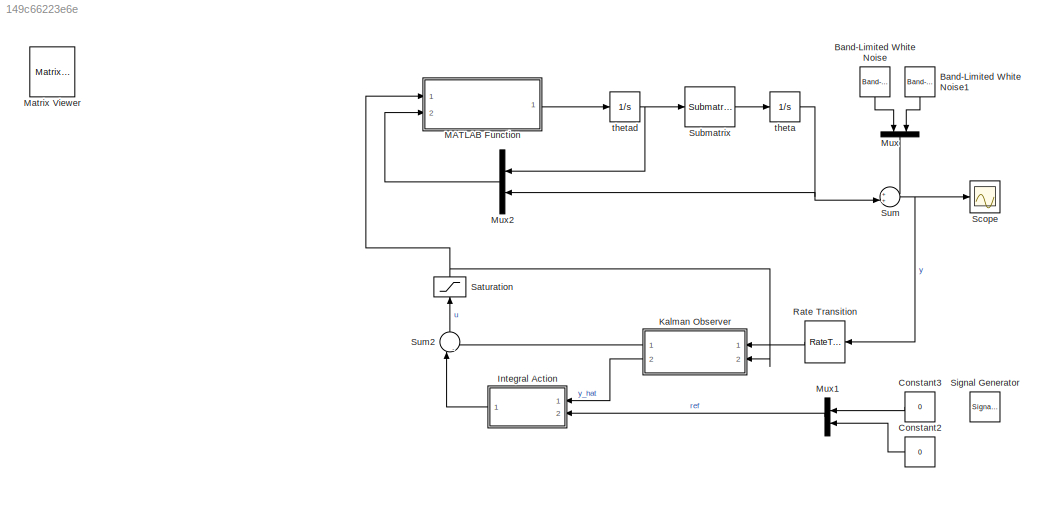
MODEL slx_149c66223e6e
KIND model
CONFIG AbsTol = auto
CONFIG EnableMultiTasking = on
CONFIG FixedStep = auto
CONFIG MaxStep = auto
CONFIG MinStep = auto
CONFIG RelTol = 1e-3
CONFIG SampleTimeConstraint = Unconstrained
CONFIG Solver = ode45
CONFIG SolverName = ode45
CONFIG StartTime = 0.0
CONFIG StopTime = 50
BLOCK [Reference] Band-Limited White Noise  REF=simulink/Sources/Band-Limited
White Noise
  Ports = [0, 1]
  SourceBlock = simulink/Sources/Band-Limited\nWhite Noise
  SourceProductBaseCode = SL
  SourceProductName = Simulink
  SourceType = Band-Limited White Noise.
BLOCK [Reference] Band-Limited White Noise1  REF=simulink/Sources/Band-Limited
White Noise
  Ports = [0, 1]
  SourceBlock = simulink/Sources/Band-Limited\nWhite Noise
  SourceProductBaseCode = SL
  SourceProductName = Simulink
  SourceType = Band-Limited White Noise.
BLOCK [Constant] Constant2
  Commented = on
  Value = 0
BLOCK [Constant] Constant3
  Commented = on
  Value = 0
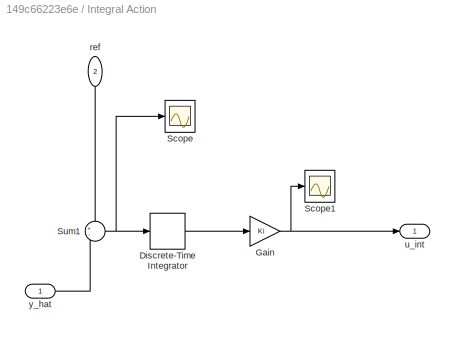
BLOCK [SubSystem] Integral Action
  Commented = on
  Ports = [2, 1]
  RequestExecContextInheritance = off
BLOCK [DiscreteIntegrator] Integral Action/Discrete-Time Integrator
  ICPrevOutput = DiscIntNeverNeededParam
  ICPrevScaledInput = DiscIntNeverNeededParam
  InitialConditionSetting = Auto
  Ports = [1, 1]
  SampleTime = h
  gainval = 1.5
BLOCK [Gain] Integral Action/Gain
  Gain = Ki
  Multiplication = Matrix(K*u)
  OutDataTypeStr = Inherit: Inherit via internal rule
  ParamDataTypeStr = Inherit: Inherit via internal rule
  SaturateOnIntegerOverflow = off
BLOCK [Scope] Integral Action/Scope
  Floating = off
  NumInputPorts = 1
  Ports = [1]
  ScopeSpecificationString = Simulink.scopes.TimeScopeBlockCfg('CurrentConfiguration', extmgr.ConfigurationSet(extmgr.Configuration('Core','General UI',true),extmgr.Configuration('Core','Source UI',true),extmgr.Configuration('Sources','WiredSimulink',true,'DataLoggingVariableName','ScopeData2'),extmgr.Configuration('Visuals','Time Domain',true,'SerializedDisplays',{struct('MinYLimReal','-1.54314','MaxYLimReal','1.12432','YLab...<+1432ch>
BLOCK [Scope] Integral Action/Scope1
  Floating = off
  NumInputPorts = 1
  Ports = [1]
  ScopeSpecificationString = Simulink.scopes.TimeScopeBlockCfg('CurrentConfiguration', extmgr.ConfigurationSet(extmgr.Configuration('Core','General UI',true),extmgr.Configuration('Core','Source UI',true),extmgr.Configuration('Sources','WiredSimulink',true,'DataLoggingVariableName','ScopeData5'),extmgr.Configuration('Visuals','Time Domain',true,'SerializedDisplays',{struct('MinYLimReal','-0.28777','MaxYLimReal','4.50646','YLab...<+1388ch>
BLOCK [Sum] Integral Action/Sum1
  IconShape = round
  InputSameDT = off
  Inputs = +-
  OutDataTypeStr = Inherit: Inherit via internal rule
  Ports = [2, 1]
  SaturateOnIntegerOverflow = off
BLOCK [Inport] Integral Action/ref
  IconDisplay = Port number
  Port = 2
BLOCK [Outport] Integral Action/u_int
  IconDisplay = Port number
BLOCK [Inport] Integral Action/y_hat
  IconDisplay = Port number
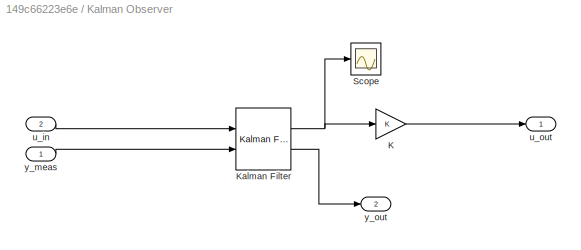
BLOCK [SubSystem] Kalman Observer
  Ports = [2, 2]
  RequestExecContextInheritance = off
BLOCK [Gain] Kalman Observer/K
  Gain = K
  Multiplication = Matrix(K*u)
  OutDataTypeStr = Inherit: Inherit via internal rule
  ParamDataTypeStr = Inherit: Inherit via internal rule
  SaturateOnIntegerOverflow = off
BLOCK [Reference] Kalman Observer/Kalman Filter  REF=ctrlSharedLib/Kalman Filter
  Ports = [2, 2]
  SourceBlock = ctrlSharedLib/Kalman Filter
  SourceProductBaseCode = CT
  SourceProductName = Control System Toolbox
  SourceType = ctrlKalmanFilter
BLOCK [Scope] Kalman Observer/Scope
  Floating = off
  NumInputPorts = 1
  Ports = [1]
  ScopeSpecificationString = Simulink.scopes.TimeScopeBlockCfg('CurrentConfiguration', extmgr.ConfigurationSet(extmgr.Configuration('Core','General UI',true),extmgr.Configuration('Core','Source UI',true),extmgr.Configuration('Sources','WiredSimulink',true,'DataLoggingVariableName','ScopeData7'),extmgr.Configuration('Visuals','Time Domain',true,'SerializedDisplays',{struct('MinYLimReal','-1.49998','MaxYLimReal','1.14682','YLab...<+1511ch>
BLOCK [Inport] Kalman Observer/u_in
  IconDisplay = Port number
  Port = 2
  PortDimensions = 1
  SampleTime = h
BLOCK [Outport] Kalman Observer/u_out
  IconDisplay = Port number
BLOCK [Inport] Kalman Observer/y_meas
  IconDisplay = Port number
  PortDimensions = 2
BLOCK [Outport] Kalman Observer/y_out
  IconDisplay = Port number
  Port = 2
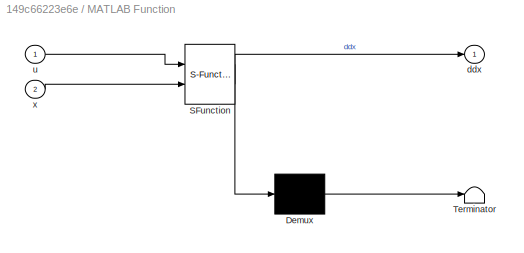
BLOCK [SubSystem] MATLAB Function
  ErrorFcn = Stateflow.Translate.translate
  PermitHierarchicalResolution = ExplicitOnly
  Ports = [2, 1]
  RequestExecContextInheritance = off
  SFBlockType = MATLAB Function
  SystemSampleTime = h
  TreatAsAtomicUnit = on
BLOCK [Demux] MATLAB Function/ Demux 
  Outputs = 1
  Ports = [1, 1]
BLOCK [S-Function] MATLAB Function/ SFunction 
  EnableBusSupport = on
  FunctionName = sf_sfun
  PortCounts = [2 2]
  Ports = [2, 2]
  SFcnIsStateOwnerBlock = off
  SFunctionDeploymentMode = off
  Tag = Stateflow S-Function LQ_simulation 2
BLOCK [Terminator] MATLAB Function/ Terminator 
BLOCK [Outport] MATLAB Function/ddx
  IconDisplay = Port number
BLOCK [Inport] MATLAB Function/u
  IconDisplay = Port number
BLOCK [Inport] MATLAB Function/x
  IconDisplay = Port number
  Port = 2
BLOCK [Reference] Matrix Viewer  REF=dspsnks4/Matrix
Viewer
  IOType = viewer
  Ports = [1]
  SourceBlock = dspsnks4/Matrix\nViewer
  SourceProductBaseCode = DS
  SourceProductName = DSP System Toolbox
  SourceType = Matrix Viewer
BLOCK [Mux] Mux
  DisplayOption = bar
  Inputs = 2
  Ports = [2, 1]
BLOCK [Mux] Mux1
  Commented = on
  DisplayOption = bar
  Inputs = 2
  Ports = [2, 1]
BLOCK [Mux] Mux2
  DisplayOption = bar
  Inputs = 2
  Ports = [2, 1]
BLOCK [RateTransition] Rate Transition
  OutPortSampleTime = h
BLOCK [Saturate] Saturation
  InputPortMap = u0
  LowerLimit = -1
  Ports = [1, 1]
  UpperLimit = 1
BLOCK [Scope] Scope
  Floating = off
  NumInputPorts = 1
  Ports = [1]
  ScopeSpecificationString = Simulink.scopes.TimeScopeBlockCfg('CurrentConfiguration', extmgr.ConfigurationSet(extmgr.Configuration('Core','General UI',true),extmgr.Configuration('Core','Source UI',true),extmgr.Configuration('Sources','WiredSimulink',true,'DataLoggingVariableName','ScopeData1'),extmgr.Configuration('Visuals','Time Domain',true,'SerializedDisplays',{struct('MinYLimReal','-187.35667','MaxYLimReal','86.04616','Y...<+1407ch>
BLOCK [SignalGenerator] Signal Generator
  Amplitude = 0.3
  Commented = on
  Frequency = 0.2
  Ports = [0, 1]
  Units = rad/sec
  WaveForm = square
BLOCK [Reference] Submatrix  REF=dspmtrx3/Submatrix
  Ports = [1, 1]
  SourceBlock = dspmtrx3/Submatrix
  SourceProductBaseCode = DS
  SourceProductName = DSP System Toolbox
  SourceType = Submatrix
BLOCK [Sum] Sum
  IconShape = round
  InputSameDT = off
  Inputs = ++|
  OutDataTypeStr = Inherit: Inherit via internal rule
  Ports = [2, 1]
  SaturateOnIntegerOverflow = off
BLOCK [Sum] Sum2
  IconShape = round
  InputSameDT = off
  Inputs = |--
  OutDataTypeStr = Inherit: Inherit via internal rule
  Ports = [2, 1]
  SaturateOnIntegerOverflow = off
BLOCK [Integrator] theta
  InitialCondition = [0;0]
  Ports = [1, 1]
BLOCK [Integrator] thetad
  InitialCondition = [0 0 0]
  Ports = [1, 1]
LINE Band-Limited White Noise1:1 -> Mux:2
LINE Band-Limited White Noise:1 -> Mux:1
LINE Constant2:1 -> Mux1:2
LINE Constant3:1 -> Mux1:1
LINE Integral Action/Discrete-Time Integrator:1 -> Integral Action/Gain:1
NET Integral Action/Gain:1 -> Integral Action/Scope1:1, Integral Action/u_int:1
NET Integral Action/Sum1:1 -> Integral Action/Discrete-Time Integrator:1, Integral Action/Scope:1
LINE Integral Action/ref:1 -> Integral Action/Sum1:1
LINE Integral Action/y_hat:1 -> Integral Action/Sum1:2
LINE Integral Action:1 -> Sum2:1
LINE Kalman Observer/K:1 -> Kalman Observer/u_out:1
NET Kalman Observer/Kalman Filter:1 -> Kalman Observer/K:1, Kalman Observer/Scope:1
LINE Kalman Observer/Kalman Filter:2 -> Kalman Observer/y_out:1
LINE Kalman Observer/u_in:1 -> Kalman Observer/Kalman Filter:1
LINE Kalman Observer/y_meas:1 -> Kalman Observer/Kalman Filter:2
LINE Kalman Observer:1 -> Sum2:2
LINE Kalman Observer:2 -> Integral Action:1
LINE MATLAB Function:1 -> thetad:1
LINE Mux1:1 -> Integral Action:2
LINE Mux2:1 -> MATLAB Function:2
LINE Mux:1 -> Sum:1
LINE Rate Transition:1 -> Kalman Observer:1
NET Saturation:1 -> Kalman Observer:2, MATLAB Function:1
LINE Submatrix:1 -> theta:1
LINE Sum2:1 -> Saturation:1
NET Sum:1 -> Rate Transition:1, Scope:1
NET theta:1 -> Mux2:2, Sum:2
NET thetad:1 -> Mux2:1, Submatrix:1
note: NET lines group one-source signal fan-out (src -> all destinations, sorted); 1:1 wires keep LINE
CHART MATLAB Function states=1 transitions=1
  STATE_LABEL 'eML_blk_kernel()'
  STATE_LABEL 'SCRIPT:\nfunction ddx = nonlinsim(u,x)\ntheta1  = x(4);\ntheta2  = x(5);\ntheta1d = x(1);\ntheta2d = x(2);\nii      = x(3);\npar =     [0.107001615392530   0.165343973632010   0.040783104942133   0.046364080778153   0.000051655820835   0.048856187724916   0.049137116812930   1.636038234993470   0.000031810472615   1.827977549139487   0.000008590269497   0.006045619229031   3.032790298604742   0.098524631...<+2831ch>'
